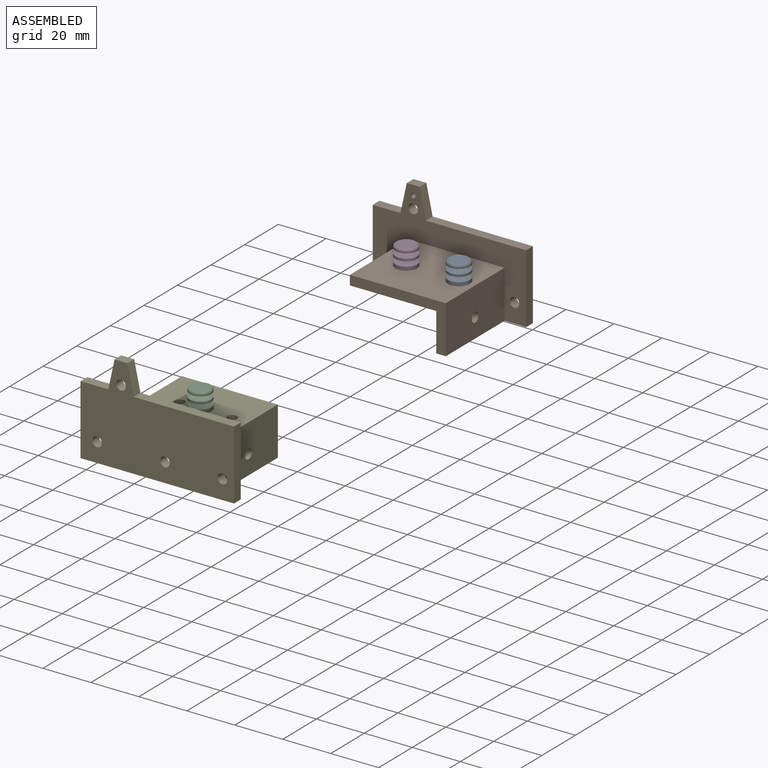
[diagram: assembled view]
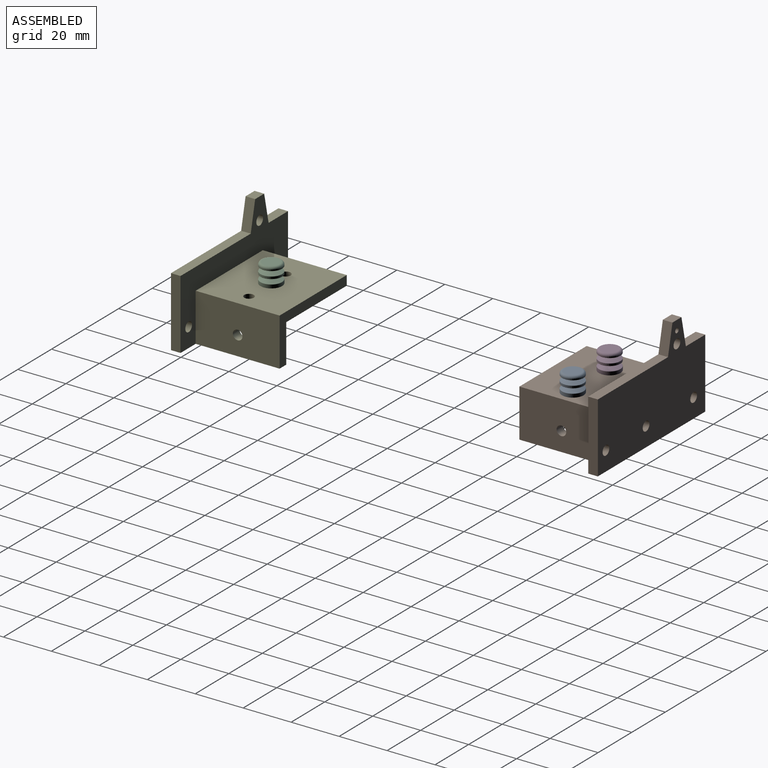
[diagram: assembled view, second angle]
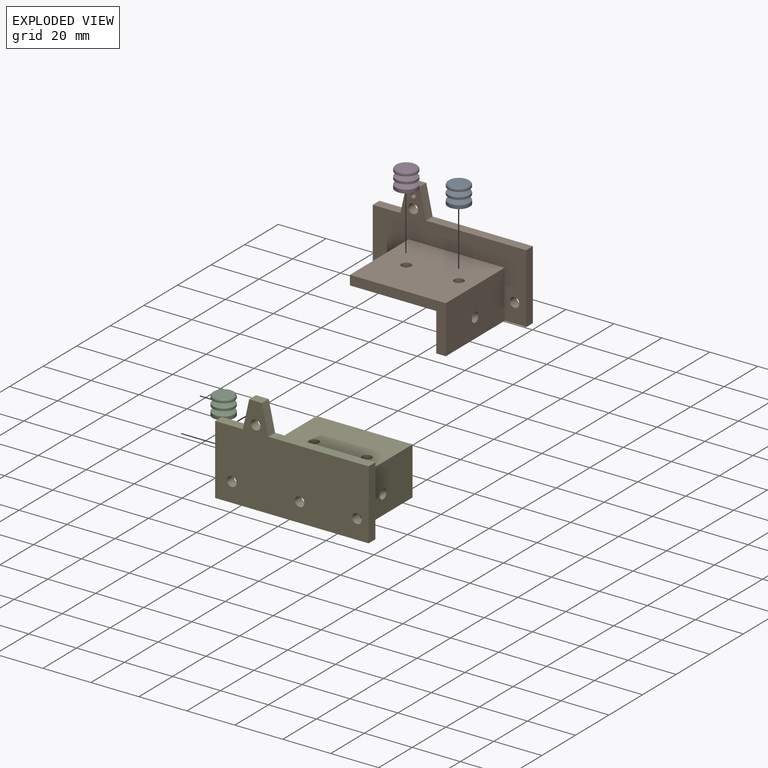
[diagram: exploded view]
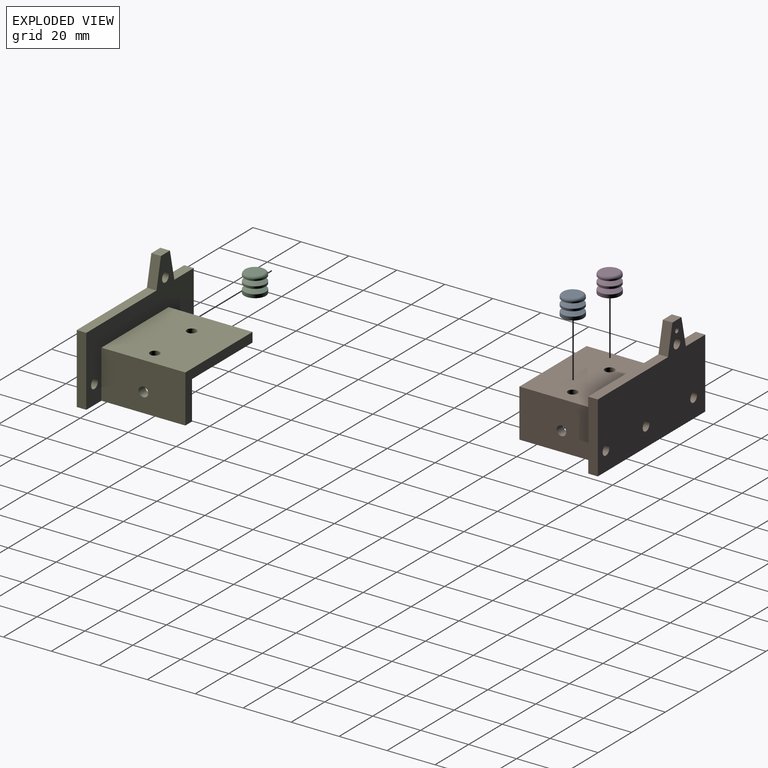
[diagram: exploded view, second angle]
ASSEMBLY  parts=5 mates=3
PART A: 20 faces, bbox 9.7x9.7x8 mm
  f0: cylinder r=4.5mm len=9mm, axis (0,0,-1), area 40.4mm2, adj f3,f18
  f1: cone r=4.5mm half-angle=71.6deg, axis (0,0,-1), area 50.9mm2, adj f3,f4
  f2: cylinder r=2mm len=4mm, axis (0,0,-1), area 2.4mm2, adj f4,f8
  f3: torus R=4.4mm, axis (0,0,1), area 3.5mm2, adj f0,f1
  f4: torus R=2.1mm, axis (0,0,-1), area 1.6mm2, adj f1,f2
  f5: cylinder r=4.5mm len=9mm, axis (0,0,1), area 24.2mm2, adj f7,f15
  f6: cone r=4.5mm half-angle=71.6deg, axis (0,0,1), area 50.9mm2, adj f7,f8
  f7: torus R=4.4mm, axis (0,0,-1), area 3.5mm2, adj f5,f6
  f8: torus R=2.1mm, axis (0,0,1), area 1.6mm2, adj f2,f6
  f9: cylinder r=4.5mm len=9mm, axis (0,0,1), area 12.1mm2, adj f12,f19
  f10: cone r=4.5mm half-angle=71.6deg, axis (0,0,1), area 50.9mm2, adj f12,f13
  f11: cylinder r=2mm len=4mm, axis (0,0,1), area 2.4mm2, adj f13,f16
  f12: torus R=4.4mm, axis (0,0,-1), area 3.5mm2, adj f9,f10
  f13: torus R=2.1mm, axis (0,0,1), area 1.6mm2, adj f10,f11
  f14: cone r=4.5mm half-angle=71.6deg, axis (0,0,-1), area 50.9mm2, adj f15,f16
  f15: torus R=4.4mm, axis (0,0,1), area 3.5mm2, adj f5,f14
  f16: torus R=2.1mm, axis (0,0,-1), area 1.6mm2, adj f11,f14
  f17: plane 7x7mm, normal (0,0,1), area 38.5mm2, adj f19
  f18: plane 9x9mm, normal (0,0,-1), area 63.6mm2, adj f0
  f19: torus R=3.5mm, axis (0,0,1), area 40.8mm2, adj f9,f17
PART B: 24 faces, bbox 64x39x41 mm
  f0: plane 64x39mm, normal (0,0,-1), area 396mm2, adj f1,f7,f8,f9,f10,f14,f15
  f1: plane 29x4mm, normal (1,0,0), area 116mm2, adj f0,f2,f8,f9
  f2: plane 41.8x4mm, normal (0,0,1), area 167.2mm2, adj f1,f3,f8,f9
  f3: plane 12x4mm, normal (0.98,0,0.21), area 49.1mm2, adj f2,f4,f8,f9
  f4: plane 5.36x4mm, normal (0,0,1), area 21.4mm2, adj f3,f5,f8,f9
  f5: plane 12x4mm, normal (-0.98,0,0.21), area 49.1mm2, adj f4,f6,f8,f9
  f6: plane 11.56x4mm, normal (0,0,1), area 46.3mm2, adj f5,f7,f8,f9
  f7: plane 29x4mm, normal (-1,0,0), area 116mm2, adj f0,f6,f8,f9
  f8: plane 64x41mm, normal (0,1,0), area 1898.5mm2, adj f0,f1,f2,f3,f4,f5,f6,f7
  f9: plane 64x41mm, normal (0,-1,0), area 1674.5mm2, adj f0,f1,f2,f3,f4,f5,f6,f7
  f10: plane 35x20mm, normal (1,0,0), area 687.4mm2, adj f0,f9,f11,f15,f19
  f11: plane 40x35mm, normal (0,0,1), area 1374.9mm2, adj f9,f10,f12,f15,f20,f21
  f12: plane 35x4mm, normal (-1,0,0), area 140mm2, adj f9,f11,f13,f15
  f13: plane 36x35mm, normal (0,0,-1), area 1234.9mm2, adj f9,f12,f14,f15,f20,f21
  f14: plane 35x16mm, normal (-1,0,0), area 547.4mm2, adj f0,f9,f13,f15,f19
  f15: plane 40x20mm, normal (0,-1,0), area 224mm2, adj f0,f10,f11,f12,f13,f14
  f16: cylinder r=2mm len=4mm, axis (0,-1,0), area 50.3mm2, adj f8,f9
  f17: cylinder r=2mm len=4mm, axis (0,-1,0), area 50.3mm2, adj f8,f9
  f18: cylinder r=2mm len=4mm, axis (0,-1,0), area 50.3mm2, adj f8,f9
  f19: cylinder r=2mm len=4mm, axis (-1,0,0), area 50.3mm2, adj f10,f14
  f20: cylinder r=2mm len=4mm, axis (0,0,-1), area 50.3mm2, adj f11,f13
  f21: cylinder r=2mm len=4mm, axis (0,0,-1), area 50.3mm2, adj f11,f13
  f22: cylinder r=2mm len=4mm, axis (0,-1,0), area 50.3mm2, adj f8,f9
  f23: cylinder r=1mm len=4mm, axis (0,-1,0), area 25.1mm2, adj f8,f9
PART C: same geometry as A
PART D: same geometry as A
PART E: 23 faces, bbox 64x39x41 mm
  f0: plane 64x39mm, normal (0,0,-1), area 396mm2, adj f1,f7,f8,f9,f10,f14,f15
  f1: plane 29x4mm, normal (1,0,0), area 116mm2, adj f0,f2,f8,f9
  f2: plane 41.8x4mm, normal (0,0,1), area 167.2mm2, adj f1,f3,f8,f9
  f3: plane 12x4mm, normal (0.98,0,0.21), area 49.1mm2, adj f2,f4,f8,f9
  f4: plane 5.36x4mm, normal (0,0,1), area 21.4mm2, adj f3,f5,f8,f9
  f5: plane 12x4mm, normal (-0.98,0,0.21), area 49.1mm2, adj f4,f6,f8,f9
  f6: plane 11.56x4mm, normal (0,0,1), area 46.3mm2, adj f5,f7,f8,f9
  f7: plane 29x4mm, normal (-1,0,0), area 116mm2, adj f0,f6,f8,f9
  f8: plane 64x41mm, normal (0,-1,0), area 1901.7mm2, adj f0,f1,f2,f3,f4,f5,f6,f7
  f9: plane 64x41mm, normal (0,1,0), area 1677.7mm2, adj f0,f1,f2,f3,f4,f5,f6,f7
  f10: plane 35x20mm, normal (1,0,0), area 687.4mm2, adj f0,f9,f11,f15,f19
  f11: plane 40x35mm, normal (0,0,1), area 1374.9mm2, adj f9,f10,f12,f15,f20,f21
  f12: plane 35x4mm, normal (-1,0,0), area 140mm2, adj f9,f11,f13,f15
  f13: plane 36x35mm, normal (0,0,-1), area 1234.9mm2, adj f9,f12,f14,f15,f20,f21
  f14: plane 35x16mm, normal (-1,0,0), area 547.4mm2, adj f0,f9,f13,f15,f19
  f15: plane 40x20mm, normal (0,1,0), area 224mm2, adj f0,f10,f11,f12,f13,f14
  f16: cylinder r=2mm len=4mm, axis (0,1,0), area 50.3mm2, adj f8,f9
  f17: cylinder r=2mm len=4mm, axis (0,1,0), area 50.3mm2, adj f8,f9
  f18: cylinder r=2mm len=4mm, axis (0,1,0), area 50.3mm2, adj f8,f9
  f19: cylinder r=2mm len=4mm, axis (-1,0,0), area 50.3mm2, adj f10,f14
  f20: cylinder r=2mm len=4mm, axis (0,0,-1), area 50.3mm2, adj f11,f13
  f21: cylinder r=2mm len=4mm, axis (0,0,-1), area 50.3mm2, adj f11,f13
  f22: cylinder r=2mm len=4mm, axis (0,1,0), area 50.3mm2, adj f8,f9
PLACE A t=(-32.34,-23.22,11.54)mm
PLACE B t=(-25.55,-5.72,10.54)mm
PLACE C t=(-45.59,-158.22,11.54)mm
PLACE D t=(-54.3,-23.22,11.54)mm
PLACE E t=(-25.55,-5.72,10.54)mm
MATE fastened D.f0 <-> B.f21  axis (0,0,-1) through (-54.3,-23.22,10.54)mm
MATE fastened A.f0 <-> B.f20  axis (0,0,-1) through (-32.34,-23.22,10.54)mm
MATE fastened C.f0 <-> E.f11  axis (0,0,-1) through (-45.59,-158.22,10.54)mm
